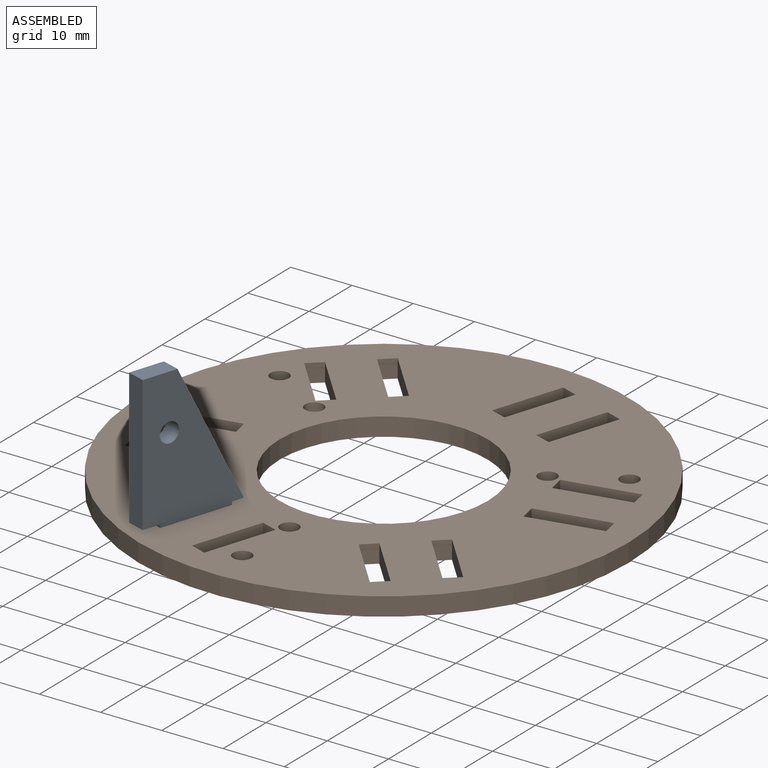
[diagram: assembled view]
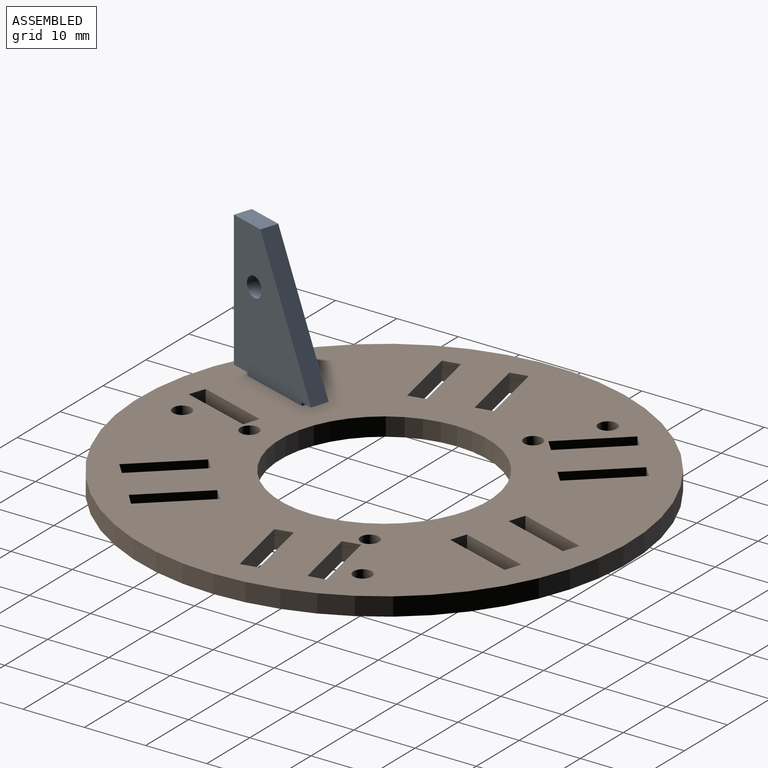
[diagram: assembled view, second angle]
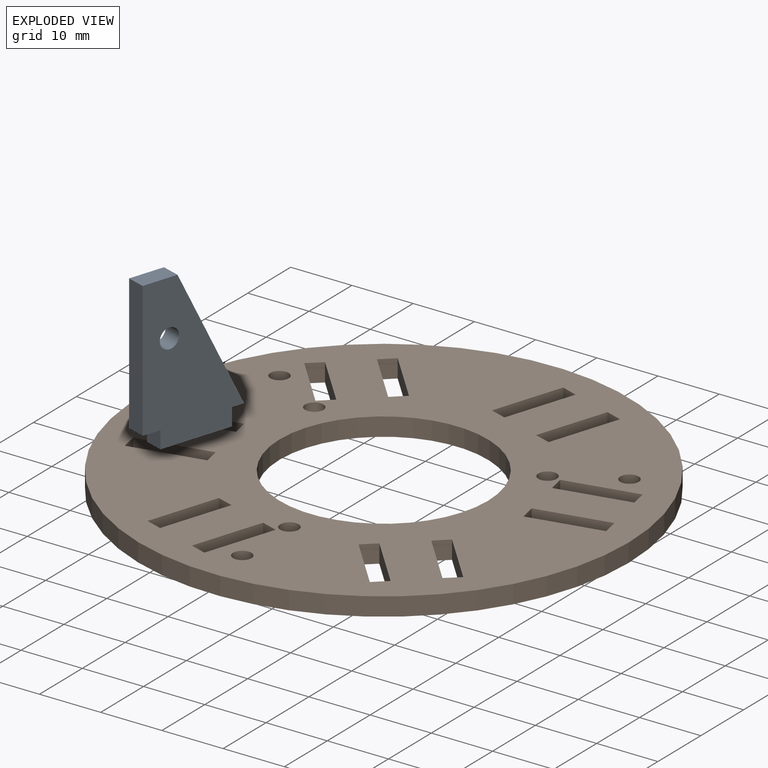
[diagram: exploded view]
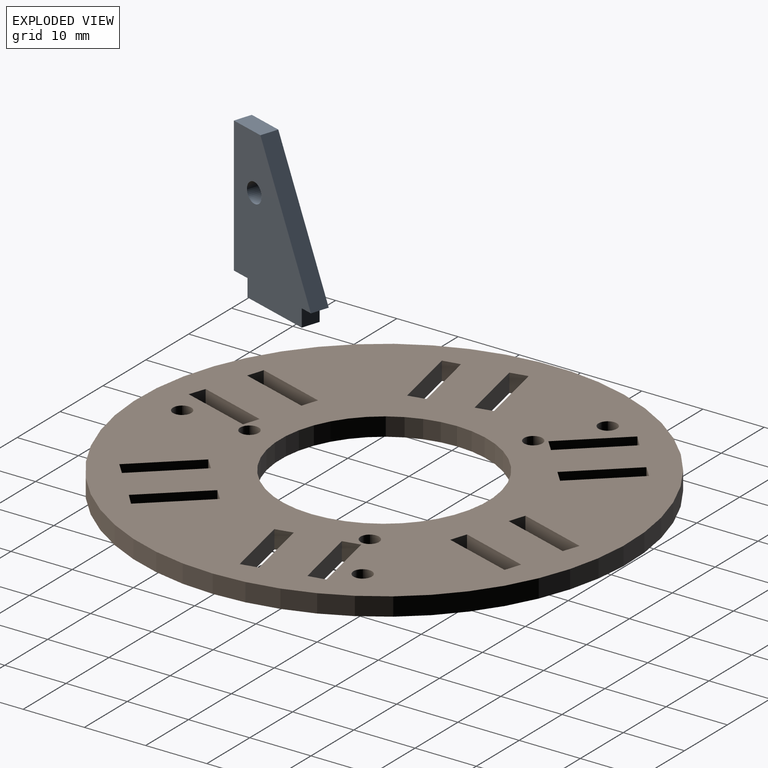
[diagram: exploded view, second angle]
ASSEMBLY  parts=2 mates=3
PART A: 11 faces, bbox 3x17x25 mm
  f0: plane 22.15x11.16mm, normal (0,0.89,0.45), area 74.4mm2, adj f1,f7,f9,f10
  f1: plane 5.86x3mm, normal (0,0,1), area 17.6mm2, adj f0,f2,f9,f10
  f2: plane 22.15x3mm, normal (0,-1,0), area 66.4mm2, adj f1,f3,f9,f10
  f3: plane 3x3mm, normal (0,0,-1), area 9mm2, adj f2,f4,f9,f10
  f4: plane 3x2.85mm, normal (0,-1,0), area 8.6mm2, adj f3,f5,f9,f10
  f5: plane 12x3mm, normal (0,0,-1), area 36mm2, adj f4,f6,f9,f10
  f6: plane 3x2.85mm, normal (0,1,0), area 8.6mm2, adj f5,f7,f9,f10
  f7: plane 3x2.02mm, normal (0,0,-1), area 6.1mm2, adj f0,f6,f9,f10
  f8: cylinder r=1.62mm len=3.24mm, axis (-1,0,0), area 30.6mm2, adj f9,f10
  f9: plane 25x17.02mm, normal (1,0,0), area 279.3mm2, adj f0,f1,f2,f3,f4,f5,f6,f7
  f10: plane 25x17.02mm, normal (-1,0,0), area 279.3mm2, adj f0,f1,f2,f3,f4,f5,f6,f7
PART B: 58 faces, bbox 80x80x3 mm
  f0: plane 80x80mm, normal (0,0,1), area 3673.5mm2, adj f2,f3,f4,f5,f6,f7,f8,f9
  f1: plane 80x80mm, normal (0,0,-1), area 3673.5mm2, adj f2,f3,f4,f5,f6,f7,f8,f9
  f2: cylinder r=17mm len=34mm, axis (0,0,-1), area 320.4mm2, adj f0,f1
  f3: cylinder r=40mm len=80mm, axis (0,0,-1), area 754mm2, adj f0,f1
  f4: cylinder r=1.5mm len=3mm, axis (0,0,1), area 28.3mm2, adj f0,f1
  f5: cylinder r=1.5mm len=3mm, axis (0,0,1), area 28.3mm2, adj f0,f1
  f6: cylinder r=1.5mm len=3mm, axis (0,0,1), area 28.3mm2, adj f0,f1
  f7: cylinder r=1.5mm len=3mm, axis (0,0,1), area 28.3mm2, adj f0,f1
  f8: cylinder r=1.5mm len=3mm, axis (0,0,1), area 28.3mm2, adj f0,f1
  f9: cylinder r=1.5mm len=3mm, axis (0,0,1), area 28.3mm2, adj f0,f1
  f10: plane 8.89x8.06mm, normal (-0.74,-0.67,0), area 36mm2, adj f0,f1,f11,f13
  f11: plane 3x2.07mm, normal (-0.67,0.74,0), area 8.4mm2, adj f0,f1,f10,f12
  f12: plane 8.89x8.06mm, normal (0.74,0.67,0), area 36mm2, adj f0,f1,f11,f13
  f13: plane 3x2.07mm, normal (0.67,-0.74,0), area 8.4mm2, adj f0,f1,f10,f12
  f14: plane 11.73x3mm, normal (0.21,-0.98,0), area 36mm2, adj f0,f1,f15,f17
  f15: plane 3x2.74mm, normal (-0.98,-0.21,0), area 8.4mm2, adj f0,f1,f14,f16
  f16: plane 11.73x3mm, normal (-0.21,0.98,0), area 36mm2, adj f0,f1,f15,f17
  f17: plane 3x2.74mm, normal (0.98,0.21,0), area 8.4mm2, adj f0,f1,f14,f16
  f18: plane 11.73x3mm, normal (0.21,-0.98,0), area 36mm2, adj f0,f1,f19,f21
  f19: plane 3x2.75mm, normal (-0.98,-0.19,0), area 8.4mm2, adj f0,f1,f18,f20
  f20: plane 11.67x3mm, normal (-0.21,0.98,0), area 35.8mm2, adj f0,f1,f19,f21
  f21: plane 3x2.74mm, normal (0.98,0.21,0), area 8.4mm2, adj f0,f1,f18,f20
  f22: plane 11.43x3.67mm, normal (0.95,-0.31,0), area 36mm2, adj f0,f1,f23,f25
  f23: plane 3x2.67mm, normal (-0.31,-0.95,0), area 8.4mm2, adj f0,f1,f22,f24
  f24: plane 11.43x3.67mm, normal (-0.95,0.31,0), area 36mm2, adj f0,f1,f23,f25
  f25: plane 3x2.67mm, normal (0.31,0.95,0), area 8.4mm2, adj f0,f1,f22,f24
  f26: plane 11.73x3mm, normal (-0.21,0.98,0), area 36mm2, adj f0,f1,f27,f29
  f27: plane 3x2.74mm, normal (0.98,0.21,0), area 8.4mm2, adj f0,f1,f26,f28
  f28: plane 11.73x3mm, normal (0.21,-0.98,0), area 36mm2, adj f0,f1,f27,f29
  f29: plane 3x2.74mm, normal (-0.98,-0.21,0), area 8.4mm2, adj f0,f1,f26,f28
  f30: plane 8.89x8.06mm, normal (0.74,0.67,0), area 36mm2, adj f0,f1,f31,f33
  f31: plane 3x2.11mm, normal (0.66,-0.75,0), area 8.4mm2, adj f0,f1,f30,f32
  f32: plane 8.84x8.02mm, normal (-0.74,-0.67,0), area 35.8mm2, adj f0,f1,f31,f33
  f33: plane 3x2.07mm, normal (-0.67,0.74,0), area 8.4mm2, adj f0,f1,f30,f32
  f34: plane 8.89x8.06mm, normal (0.74,0.67,0), area 36mm2, adj f0,f1,f35,f37
  f35: plane 3x2.07mm, normal (0.67,-0.74,0), area 8.4mm2, adj f0,f1,f34,f36
  f36: plane 8.89x8.06mm, normal (-0.74,-0.67,0), area 36mm2, adj f0,f1,f35,f37
  f37: plane 3x2.07mm, normal (-0.67,0.74,0), area 8.4mm2, adj f0,f1,f34,f36
  f38: plane 11.43x3.67mm, normal (0.95,-0.31,0), area 36mm2, adj f0,f1,f39,f41
  f39: plane 3x2.65mm, normal (-0.32,-0.95,0), area 8.4mm2, adj f0,f1,f38,f40
  f40: plane 11.37x3.65mm, normal (-0.95,0.31,0), area 35.8mm2, adj f0,f1,f39,f41
  f41: plane 3x2.67mm, normal (0.31,0.95,0), area 8.4mm2, adj f0,f1,f38,f40
  f42: plane 3x2.74mm, normal (-0.98,-0.21,0), area 8.4mm2, adj f0,f1,f43,f45
  f43: plane 11.73x3mm, normal (-0.21,0.98,0), area 36mm2, adj f0,f1,f42,f44
  f44: plane 3x2.75mm, normal (0.98,0.19,0), area 8.4mm2, adj f0,f1,f43,f45
  f45: plane 11.67x3mm, normal (0.21,-0.98,0), area 35.8mm2, adj f0,f1,f42,f44
  f46: plane 11.43x3.67mm, normal (-0.95,0.31,0), area 36mm2, adj f0,f1,f47,f49
  f47: plane 3x2.67mm, normal (0.31,0.95,0), area 8.4mm2, adj f0,f1,f46,f48
  f48: plane 11.43x3.67mm, normal (0.95,-0.31,0), area 36mm2, adj f0,f1,f47,f49
  f49: plane 3x2.67mm, normal (-0.31,-0.95,0), area 8.4mm2, adj f0,f1,f46,f48
  f50: plane 3x2.67mm, normal (-0.31,-0.95,0), area 8.4mm2, adj f0,f1,f51,f53
  f51: plane 11.43x3.67mm, normal (-0.95,0.31,0), area 36mm2, adj f0,f1,f50,f52
  f52: plane 3x2.65mm, normal (0.32,0.95,0), area 8.4mm2, adj f0,f1,f51,f53
  f53: plane 11.37x3.65mm, normal (0.95,-0.31,0), area 35.8mm2, adj f0,f1,f50,f52
  f54: plane 8.89x8.06mm, normal (-0.74,-0.67,0), area 36mm2, adj f0,f1,f55,f57
  f55: plane 3x2.11mm, normal (-0.66,0.75,0), area 8.4mm2, adj f0,f1,f54,f56
  f56: plane 8.84x8.02mm, normal (0.74,0.67,0), area 35.8mm2, adj f0,f1,f55,f57
  f57: plane 3x2.07mm, normal (0.67,-0.74,0), area 8.4mm2, adj f0,f1,f54,f56
PLACE A rot(axis=(0,0,-1),17.8deg) t=(-44.89,-22.1,22.62)mm
PLACE B t=(-27.14,11.95,19.1)mm fixed
MATE parallel B.f3 <-> A.f5  axis (0,0,-1) through (-27.14,11.95,19.1)mm
MATE planar A.f9 <-> B.f46  axis (0.95,-0.31,0) through (-39.29,-14.44,19.76)mm
MATE parallel A.f4 <-> B.f47  axis (-0.31,-0.95,0) through (-42.55,-19.7,21.19)mm
